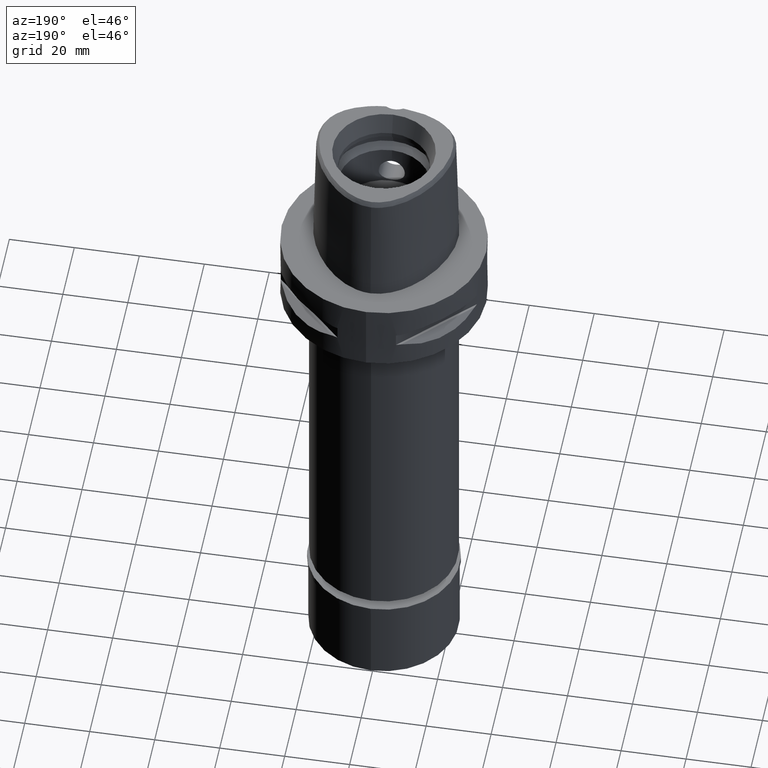
[diagram: clean part render]
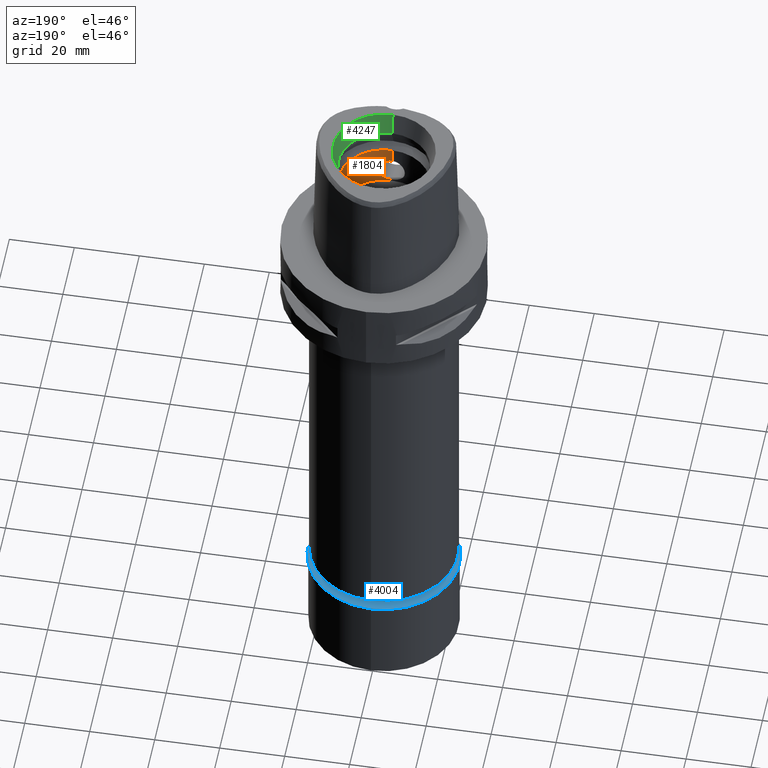
[diagram: same view with three faces highlighted in distinct colors, each labeled with its STEP entity id]
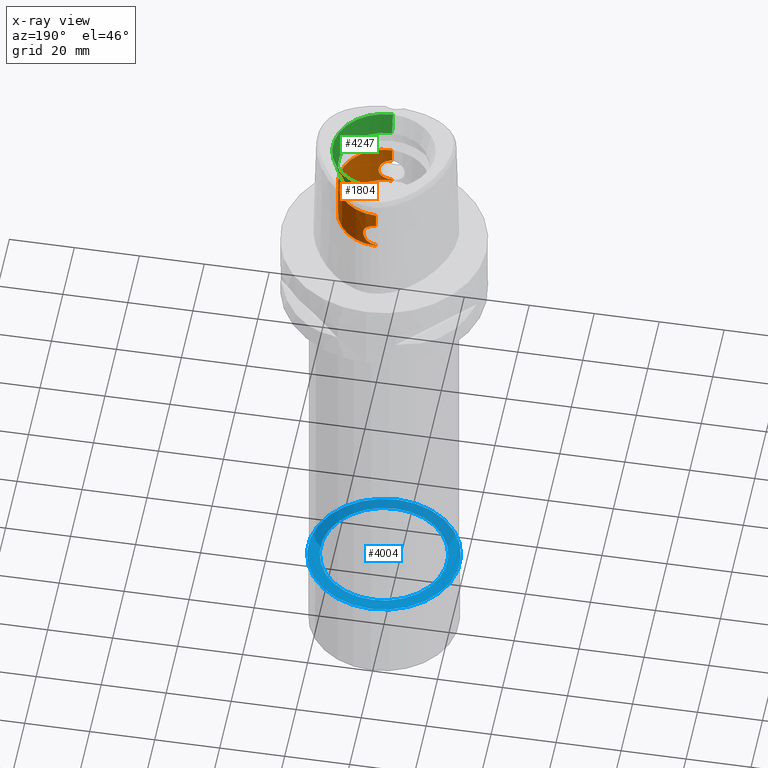
[diagram: x-ray of the same camera — body ghosted, the three highlighted faces saturated]
A machine part, auxiliary view with three faces highlighted in distinct colors.
The next image is the same camera in x-ray (body ghosted, the three faces saturated) — at least one of them is partly hidden behind the body in this view.
Their STEP definitions:

[orange] entity #1804 — the highlighted cylindrical surface (partial cylindrical patch) has radius 14 mm, axis along (0, 0, -1).
#11 = CARTESIAN_POINT ( 'NONE',  ( 2.356169659980356990, 13.80026630004203447, 18.79420345841271711 ) ) ;
#18 = CARTESIAN_POINT ( 'NONE',  ( 1.017639181859059772, -13.96323047955135976, 19.42236212085266089 ) ) ;
#33 = CARTESIAN_POINT ( 'NONE',  ( 0.5031375785651610588, 13.99299620741434325, 11.47286437004442305 ) ) ;
#36 = CARTESIAN_POINT ( 'NONE',  ( 2.474897425330298883, 13.77946391610721300, 18.70653994269108011 ) ) ;
#40 = CARTESIAN_POINT ( 'NONE',  ( 1.516899316928164376, -13.91750090884430335, 19.25522928305961656 ) ) ;
#53 = CARTESIAN_POINT ( 'NONE',  ( 2.993275682879698252, 13.67636296169212606, 18.22847972466929889 ) ) ;
#65 = CYLINDRICAL_SURFACE ( 'NONE', #2184, 14.00000000000000000 ) ;
#76 = CARTESIAN_POINT ( 'NONE',  ( 1.773859858298503012, 13.88717310935475524, 19.14143527715514992 ) ) ;
#83 = CARTESIAN_POINT ( 'NONE',  ( 3.557104272944181300, -13.54067981902579199, 13.56250217908869082 ) ) ;
#88 = EDGE_CURVE ( 'NONE', #3905, #2511, #2201, .T. ) ;
#111 = CARTESIAN_POINT ( 'NONE',  ( 3.723011875673563065, -13.49602288719190923, 17.09439534800783633 ) ) ;
#116 = CARTESIAN_POINT ( 'NONE',  ( 0.0000000000000000000, 14.00000000000000000, 19.55000000000000071 ) ) ;
#132 = CARTESIAN_POINT ( 'NONE',  ( 3.927475894207633988, -13.43840014692450779, 16.52342187619371217 ) ) ;
#158 = CARTESIAN_POINT ( 'NONE',  ( 2.619693227490592857, -13.75270887468306924, 18.58958572216364402 ) ) ;
#169 = AXIS2_PLACEMENT_3D ( 'NONE', #3691, #4095, #257 ) ;
#179 = B_SPLINE_CURVE_WITH_KNOTS ( 'NONE', 3,
 ( #1914, #1184, #3425, #774, #18, #2322, #404, #3484, #1484, #3459, #40, #1589, #1567, #3103, #3010, #4645, #1213, #4550, #1110, #857, #516, #2864, #3609, #1287, #3153, #158, #2449, #4318, #4696, #442, #1236, #3206, #881, #2842, #1332, #2823, #496, #2472, #3889, #3959, #4369, #1312, #927, #2768, #2065, #4346, #3579, #1713, #111, #3225, #2431, #3985, #1262, #132, #4293, #4767, #3174, #3937, #4717, #187, #2793, #2044, #4391, #3555, #2376, #1991, #1663, #3503, #1641, #83, #907, #535, #1687, #4744, #2399, #1617, #2092, #3130, #4670, #3908, #467, #2018, #3533, #2910, #1829, #4885, #4442, #3649, #2136, #4857, #981, #2950, #1401, #4418, #4817, #2518, #4014, #273, #1352, #1453, #4489, #2927, #1003, #1758, #664, #604, #4035, #1056, #2982 ),
 .UNSPECIFIED., .F., .F.,
 ( 4, 2, 2, 1, 1, 2, 2, 2, 2, 1, 1, 1, 2, 2, 2, 2, 1, 2, 2, 2, 2, 1, 1, 1, 2, 2, 2, 2, 1, 1, 2, 2, 2, 2, 2, 2, 1, 1, 1, 2, 2, 2, 2, 1, 1, 1, 2, 2, 2, 2, 2, 2, 2, 2, 1, 1, 1, 2, 2, 2, 2, 1, 2, 2, 4 ),
 ( 0.0000000000000000000, 0.06249999999999861222, 0.09374999999999793221, 0.1093749999999977102, 0.1171874999999976824, 0.1210937499999975714, 0.1249999999999974742, 0.1562499999999949762, 0.1718749999999935885, 0.1796874999999928668, 0.1835937499999927003, 0.1855468749999926170, 0.1865234374999926170, 0.1874999999999926170, 0.2187499999999881206, 0.2343749999999858724, 0.2421874999999847344, 0.2460937499999841238, 0.2499999999999835132, 0.2812499999999796274, 0.2968749999999779066, 0.3046874999999771294, 0.3085937499999763522, 0.3105468749999760192, 0.3115234374999757971, 0.3124999999999756306, 0.3437499999999881761, 0.3593749999999947264, 0.3671874999999984457, 0.3710937499999999445, 0.3730468750000002776, 0.3750000000000006106, 0.4375000000000112688, 0.5000000000000219824, 0.5625000000000326406, 0.5937500000000379696, 0.6093750000000408562, 0.6171875000000422995, 0.6210937500000431877, 0.6230468750000437428, 0.6250000000000444089, 0.6562500000000488498, 0.6718750000000509592, 0.6796875000000517364, 0.6835937500000521805, 0.6855468750000522915, 0.6865234375000524025, 0.6875000000000524025, 0.7187500000000455191, 0.7343750000000420775, 0.7421875000000405231, 0.7500000000000388578, 0.7812500000000324185, 0.7968750000000293099, 0.8046875000000278666, 0.8085937500000270894, 0.8105468750000267564, 0.8115234375000267564, 0.8125000000000266454, 0.8437500000000217604, 0.8593750000000194289, 0.8671875000000182077, 0.8710937500000175415, 0.8750000000000168754, 1.000000000000000000 ),
 .UNSPECIFIED. ) ;
#187 = CARTESIAN_POINT ( 'NONE',  ( 3.922079205936650936, -13.43983130147391414, 14.48117699419107574 ) ) ;
#221 = CARTESIAN_POINT ( 'NONE',  ( 0.0000000000000000000, -14.00000000000000000, 24.19999999999999929 ) ) ;
#234 = CARTESIAN_POINT ( 'NONE',  ( 0.0000000000000000000, -14.00000000000000000, 11.00000000000000000 ) ) ;
#251 = CARTESIAN_POINT ( 'NONE',  ( 2.564495781835727684, 13.76306347781942740, 12.36466282433596042 ) ) ;
#257 = DIRECTION ( 'NONE',  ( 0.0000000000000000000, 1.000000000000000000, 0.0000000000000000000 ) ) ;
#273 = CARTESIAN_POINT ( 'NONE',  ( 2.130881178302892920, -13.83743566614956499, 12.05283858992811119 ) ) ;
#276 = CARTESIAN_POINT ( 'NONE',  ( 2.206585077432667852, 13.82500562469161487, 12.10388135703218460 ) ) ;
#295 = CARTESIAN_POINT ( 'NONE',  ( 2.794188265665984883, 13.71831884113747613, 12.56820068599706985 ) ) ;
#298 = EDGE_CURVE ( 'NONE', #3455, #4815, #3277, .T. ) ;
#322 = VECTOR ( 'NONE', #1962, 1000.000000000000000 ) ;
#323 = CARTESIAN_POINT ( 'NONE',  ( 2.987551070598235103, 13.67820116345343351, 12.75916637442935020 ) ) ;
#348 = CARTESIAN_POINT ( 'NONE',  ( 3.362135645915919735, 13.59026426608101623, 13.24199978628648466 ) ) ;
#364 = VERTEX_POINT ( 'NONE', #1861 ) ;
#396 = CARTESIAN_POINT ( 'NONE',  ( 3.557088666341913452, 13.54068383479801696, 17.43752651043655888 ) ) ;
#404 = CARTESIAN_POINT ( 'NONE',  ( 1.307177758792425593, -13.93893633211208183, 19.33430355924310362 ) ) ;
#420 = CARTESIAN_POINT ( 'NONE',  ( 0.0000000000000000000, -14.00000000000000000, 19.55000000000000071 ) ) ;
#422 = EDGE_CURVE ( 'NONE', #4613, #3455, #4136, .T. ) ;
#442 = CARTESIAN_POINT ( 'NONE',  ( 2.824278146743549822, -13.71216806335033134, 18.40282419413597381 ) ) ;
#459 = CARTESIAN_POINT ( 'NONE',  ( 3.377713256182831802, 13.58640893255668480, 17.73462749921339565 ) ) ;
#467 = CARTESIAN_POINT ( 'NONE',  ( 3.144649004261528269, -13.64249969685045905, 12.94694166654273459 ) ) ;
#496 = CARTESIAN_POINT ( 'NONE',  ( 3.321853759897874347, -13.60021613421030828, 17.81705094767798414 ) ) ;
#508 = ORIENTED_EDGE ( 'NONE', *, *, #88, .T. ) ;
#516 = CARTESIAN_POINT ( 'NONE',  ( 2.225307842475649611, -13.82200032481022589, 18.88386244170435901 ) ) ;
#535 = CARTESIAN_POINT ( 'NONE',  ( 3.471407568617137063, -13.56281871368539349, 13.41360808473570287 ) ) ;
#543 = CARTESIAN_POINT ( 'NONE',  ( 0.0000000000000000000, 14.00000000000000000, 11.00000000000000000 ) ) ;
#555 = CARTESIAN_POINT ( 'NONE',  ( 0.0000000000000000000, 14.00000000000000000, 11.44999999999999929 ) ) ;
#604 = CARTESIAN_POINT ( 'NONE',  ( 1.559056483628390000, -13.91280418779705386, 11.76206681924366038 ) ) ;
#607 = CARTESIAN_POINT ( 'NONE',  ( 1.467188112033413816, 13.92282148873381864, 11.72506250693289864 ) ) ;
#642 = CARTESIAN_POINT ( 'NONE',  ( 4.049894426081060317, 13.40142315477328694, 15.74850829864217161 ) ) ;
#664 = CARTESIAN_POINT ( 'NONE',  ( 1.571471244893269947, -13.91140584751726195, 11.76727716384253242 ) ) ;
#665 = CARTESIAN_POINT ( 'NONE',  ( 3.446439376995800608, 13.56939223702177699, 13.36783492912207905 ) ) ;
#688 = CARTESIAN_POINT ( 'NONE',  ( 3.850558670354384372, 13.46064117905768498, 14.21385490519483774 ) ) ;
#720 = CARTESIAN_POINT ( 'NONE',  ( 2.837973772893474411, 13.70934612522084173, 12.61054438063453098 ) ) ;
#769 = CARTESIAN_POINT ( 'NONE',  ( 2.130873031675732943, 13.83743700475326222, 18.94716637659228908 ) ) ;
#774 = CARTESIAN_POINT ( 'NONE',  ( 0.8886530555208230764, -13.97198512727722708, 19.45346844016501819 ) ) ;
#826 = CARTESIAN_POINT ( 'NONE',  ( 0.0000000000000000000, 14.00000000000000000, 19.55000000000000071 ) ) ;
#857 = CARTESIAN_POINT ( 'NONE',  ( 2.217825895411760673, -13.82320329824160154, 18.88877091521425200 ) ) ;
#871 = DIRECTION ( 'NONE',  ( 0.0000000000000000000, 0.0000000000000000000, 1.000000000000000000 ) ) ;
#881 = CARTESIAN_POINT ( 'NONE',  ( 3.092415008813759414, -13.65466569419126941, 18.11866219984722548 ) ) ;
#907 = CARTESIAN_POINT ( 'NONE',  ( 3.524216152967915239, -13.54926445640317390, 13.50320070280202778 ) ) ;
#927 = CARTESIAN_POINT ( 'NONE',  ( 3.446478207123973903, -13.56938250736676821, 17.63210248793066270 ) ) ;
#981 = CARTESIAN_POINT ( 'NONE',  ( 2.356179768667444829, -13.80026442332007797, 12.20580376819834711 ) ) ;
#1003 = CARTESIAN_POINT ( 'NONE',  ( 1.643124464716988919, -13.90317117703250283, 11.79805916106663588 ) ) ;
#1006 = CARTESIAN_POINT ( 'NONE',  ( 4.027216825694031499, 13.40877103518722357, 14.99603235332364903 ) ) ;
#1028 = CARTESIAN_POINT ( 'NONE',  ( 3.649287754606132417, 13.51628378879347814, 17.26146357314931024 ) ) ;
#1056 = CARTESIAN_POINT ( 'NONE',  ( 0.4996170307102337782, -13.99999999999999822, 11.44999999999999396 ) ) ;
#1058 = CARTESIAN_POINT ( 'NONE',  ( 1.210739730854810459, 13.94747155560755481, 11.63462642380360457 ) ) ;
#1083 = CARTESIAN_POINT ( 'NONE',  ( 2.180412222332861027, 13.82916808513869356, 12.08695799697060025 ) ) ;
#1105 = CARTESIAN_POINT ( 'NONE',  ( 3.217025596349118555, 13.62560769370299951, 13.03875506105696758 ) ) ;
#1110 = CARTESIAN_POINT ( 'NONE',  ( 2.206604282627393498, -13.82500263684194053, 18.89610616579946623 ) ) ;
#1134 = CARTESIAN_POINT ( 'NONE',  ( 2.010501717821064460, 13.85534156541368667, 19.01828921528356986 ) ) ;
#1184 = CARTESIAN_POINT ( 'NONE',  ( 0.2481241771891335435, -14.00000000000000178, 19.54999999999999361 ) ) ;
#1204 = CARTESIAN_POINT ( 'NONE',  ( 1.832682128947450639, 13.87954668815114267, 19.11223895308327414 ) ) ;
#1213 = CARTESIAN_POINT ( 'NONE',  ( 2.128132661610546261, -13.83734705125468700, 18.94611731526516252 ) ) ;
#1218 = FACE_OUTER_BOUND ( 'NONE', #4638, .T. ) ;
#1236 = CARTESIAN_POINT ( 'NONE',  ( 2.838009928935847803, -13.70933862722912977, 18.38942009771112751 ) ) ;
#1262 = CARTESIAN_POINT ( 'NONE',  ( 3.850575600135678567, -13.46063562734242325, 16.78609245255339033 ) ) ;
#1285 = ORIENTED_EDGE ( 'NONE', *, *, #4603, .F. ) ;
#1287 = CARTESIAN_POINT ( 'NONE',  ( 2.407040127210700042, -13.79178862306534903, 18.75984205949160000 ) ) ;
#1312 = CARTESIAN_POINT ( 'NONE',  ( 3.362175151429302122, -13.59025468045926210, 17.75794138952812062 ) ) ;
#1332 = CARTESIAN_POINT ( 'NONE',  ( 3.253150413719887446, -13.61695205282538801, 17.91296083942541983 ) ) ;
#1351 = ORIENTED_EDGE ( 'NONE', *, *, #1874, .F. ) ;
#1352 = CARTESIAN_POINT ( 'NONE',  ( 2.010509632018043558, -13.85534039799606809, 11.98171533891770579 ) ) ;
#1369 = VECTOR ( 'NONE', #2598, 1000.000000000000000 ) ;
#1401 = CARTESIAN_POINT ( 'NONE',  ( 2.286401869824826072, -13.81203602588828794, 12.15707754367046434 ) ) ;
#1403 = CARTESIAN_POINT ( 'NONE',  ( 3.344202712280511136, 13.59470072215733438, 13.21548413948281997 ) ) ;
#1424 = CARTESIAN_POINT ( 'NONE',  ( 1.994196793350470953, 13.85732250606946003, 11.97431708272922002 ) ) ;
#1453 = CARTESIAN_POINT ( 'NONE',  ( 1.832691376557126661, -13.87954557479148576, 11.88776574645217110 ) ) ;
#1454 = CARTESIAN_POINT ( 'NONE',  ( 1.499100513058812201, 13.91942902670013638, 11.73762153891946447 ) ) ;
#1479 = CARTESIAN_POINT ( 'NONE',  ( 3.922078288965881399, 13.43983163058567598, 16.51882742556871264 ) ) ;
#1484 = CARTESIAN_POINT ( 'NONE',  ( 1.467178111796096918, -13.92282230864165804, 19.27494137943903496 ) ) ;
#1503 = CARTESIAN_POINT ( 'NONE',  ( 3.737862436382984210, 13.49191471466118131, 13.94085186772397122 ) ) ;
#1510 = CARTESIAN_POINT ( 'NONE',  ( 0.0000000000000000000, 0.0000000000000000000, 24.19999999999999929 ) ) ;
#1537 = CARTESIAN_POINT ( 'NONE',  ( 1.600065394692234744, 13.90814645047113807, 19.22055538723221702 ) ) ;
#1563 = CARTESIAN_POINT ( 'NONE',  ( 2.632421440604336027, 13.75053619292203422, 18.58073368517403168 ) ) ;
#1567 = CARTESIAN_POINT ( 'NONE',  ( 1.758914213702833296, -13.88947879501358784, 19.15051695542401333 ) ) ;
#1584 = CARTESIAN_POINT ( 'NONE',  ( 2.268763823005850444, 13.81494635581264063, 18.85488801691585081 ) ) ;
#1589 = CARTESIAN_POINT ( 'NONE',  ( 1.643402327093814730, -13.90359116573070608, 19.20357680873692630 ) ) ;
#1617 = CARTESIAN_POINT ( 'NONE',  ( 3.386236333444496260, -13.58428775399521271, 13.27830608081073649 ) ) ;
#1635 = CARTESIAN_POINT ( 'NONE',  ( 3.329833399432507335, 13.59830740143285155, 17.80689756936500245 ) ) ;
#1641 = CARTESIAN_POINT ( 'NONE',  ( 3.649300473944157464, -13.51628050932590952, 13.73856294196858840 ) ) ;
#1663 = CARTESIAN_POINT ( 'NONE',  ( 3.750535583143677520, -13.48837563528976702, 13.97158931176797303 ) ) ;
#1687 = CARTESIAN_POINT ( 'NONE',  ( 3.444134305114952443, -13.56976516763054086, 13.36865222199371495 ) ) ;
#1713 = CARTESIAN_POINT ( 'NONE',  ( 3.701476196223031589, -13.50195603622036877, 17.14416223935631223 ) ) ;
#1726 = B_SPLINE_CURVE_WITH_KNOTS ( 'NONE', 3,
 ( #3450, #1937, #33, #2313, #3828, #1058, #4495, #4860, #607, #1454, #2983, #4520, #2634, #4113, #1424, #3708, #4164, #1083, #276, #2236, #2194, #3298, #2610, #1809, #251, #4840, #2952, #1887, #295, #1785, #720, #323, #2589, #1105, #4935, #2559, #4089, #1403, #2265, #3782, #3320, #348, #665, #2213, #3728, #3395, #4139, #1833, #3753, #3345, #1503, #4888, #688, #3029, #1006, #1863, #642, #3374, #4912, #1479, #3005, #4546, #2930, #2538, #4060, #2162, #4466, #3685, #1028, #396, #2690, #2761, #2371, #2390, #3902, #3418, #3478, #459, #1635, #3060, #4287, #4217, #3453, #53, #1942, #3882, #4639, #1563, #36, #2663, #11, #2009, #2348, #1584, #4193, #3125, #4242, #769, #1134, #1204, #76, #3499, #4664, #1537, #2740, #3098, #4271, #3079, #826 ),
 .UNSPECIFIED., .F., .F.,
 ( 4, 2, 2, 1, 1, 2, 2, 2, 2, 1, 1, 1, 2, 2, 2, 2, 1, 2, 2, 2, 2, 1, 1, 1, 2, 2, 2, 2, 1, 1, 2, 2, 2, 2, 2, 2, 1, 1, 1, 2, 2, 2, 2, 1, 1, 1, 2, 2, 2, 2, 2, 2, 2, 2, 1, 1, 1, 2, 2, 2, 2, 1, 2, 2, 4 ),
 ( 0.0000000000000000000, 0.06250000000002138567, 0.09375000000003208545, 0.1093750000000373868, 0.1171875000000400235, 0.1210937500000413142, 0.1250000000000425771, 0.1562500000000529021, 0.1718750000000581479, 0.1796875000000608402, 0.1835937500000622002, 0.1855468750000628664, 0.1865234375000631162, 0.1875000000000633660, 0.2187500000000720257, 0.2343750000000762446, 0.2421875000000783817, 0.2460937500000794087, 0.2500000000000804357, 0.2812500000000883738, 0.2968750000000922040, 0.3046875000000943134, 0.3085937500000953126, 0.3105468750000957567, 0.3115234375000957012, 0.3125000000000956457, 0.3437500000000897615, 0.3593750000000867639, 0.3671875000000850986, 0.3710937500000843214, 0.3730468750000841549, 0.3750000000000839884, 0.4375000000000763833, 0.5000000000000687228, 0.5625000000000610623, 0.5937500000000568434, 0.6093750000000547340, 0.6171875000000537348, 0.6210937500000535127, 0.6230468750000534017, 0.6250000000000532907, 0.6562500000000528466, 0.6718750000000526246, 0.6796875000000521805, 0.6835937500000519584, 0.6855468750000521805, 0.6865234375000519584, 0.6875000000000517364, 0.7187500000000504041, 0.7343750000000500711, 0.7421875000000499600, 0.7500000000000498490, 0.7812500000000496270, 0.7968750000000497380, 0.8046875000000501821, 0.8085937500000504041, 0.8105468750000504041, 0.8115234375000504041, 0.8125000000000504041, 0.8437500000000428546, 0.8593750000000391909, 0.8671875000000375255, 0.8710937500000365263, 0.8750000000000355271, 1.000000000000000000 ),
 .UNSPECIFIED. ) ;
#1758 = CARTESIAN_POINT ( 'NONE',  ( 1.600078814829182683, -13.90814512833554062, 11.77945038583911952 ) ) ;
#1785 = CARTESIAN_POINT ( 'NONE',  ( 2.824245245329735532, 13.71217485459649943, 12.59714380724674676 ) ) ;
#1804 = ADVANCED_FACE ( 'NONE', ( #1218 ), #65, .F. ) ;
#1809 = CARTESIAN_POINT ( 'NONE',  ( 2.407026743236367672, 13.79179092510370097, 12.24014823374410454 ) ) ;
#1829 = CARTESIAN_POINT ( 'NONE',  ( 2.935464796402679433, -13.68884427349752286, 12.70941809089992525 ) ) ;
#1833 = CARTESIAN_POINT ( 'NONE',  ( 3.701448599127524108, 13.50196410077353448, 13.85577559946501047 ) ) ;
#1861 = CARTESIAN_POINT ( 'NONE',  ( 0.0000000000000000000, 14.00000000000000000, 19.55000000000000071 ) ) ;
#1863 = CARTESIAN_POINT ( 'NONE',  ( 4.050104837865987406, 13.40137507185002264, 15.25494482419060205 ) ) ;
#1874 = EDGE_CURVE ( 'NONE', #364, #4815, #3177, .T. ) ;
#1887 = CARTESIAN_POINT ( 'NONE',  ( 2.749405349986303371, 13.72738952680676761, 12.52574890524282303 ) ) ;
#1897 = ORIENTED_EDGE ( 'NONE', *, *, #3763, .F. ) ;
#1907 = CARTESIAN_POINT ( 'NONE',  ( 0.0000000000000000000, 14.00000000000000000, 24.19999999999999929 ) ) ;
#1914 = CARTESIAN_POINT ( 'NONE',  ( 0.0000000000000000000, -14.00000000000000000, 19.55000000000000071 ) ) ;
#1937 = CARTESIAN_POINT ( 'NONE',  ( 0.2481266265099588697, 14.00000000000000000, 11.44999999999999929 ) ) ;
#1942 = CARTESIAN_POINT ( 'NONE',  ( 2.935444872375262637, 13.68884853175270422, 18.29060286011752723 ) ) ;
#1962 = DIRECTION ( 'NONE',  ( 0.0000000000000000000, 0.0000000000000000000, 1.000000000000000000 ) ) ;
#1991 = CARTESIAN_POINT ( 'NONE',  ( 3.754236443714588756, -13.48734669256755936, 13.98069631228531051 ) ) ;
#2005 = LINE ( 'NONE', #2108, #4076 ) ;
#2009 = CARTESIAN_POINT ( 'NONE',  ( 2.322867095772036539, 13.80594945643857230, 18.81782271191790201 ) ) ;
#2018 = CARTESIAN_POINT ( 'NONE',  ( 3.098515381889971554, -13.65306636117190564, 12.89080379855279013 ) ) ;
#2044 = CARTESIAN_POINT ( 'NONE',  ( 3.833378784122815297, -13.46518651548714907, 14.19006897788388244 ) ) ;
#2065 = CARTESIAN_POINT ( 'NONE',  ( 3.612125191156387860, -13.52615234759962703, 17.33290907844232720 ) ) ;
#2092 = CARTESIAN_POINT ( 'NONE',  ( 3.381275431631792117, -13.58552310375042360, 13.27076317275498774 ) ) ;
#2108 = CARTESIAN_POINT ( 'NONE',  ( 0.0000000000000000000, 14.00000000000000000, 11.00000000000000000 ) ) ;
#2136 = CARTESIAN_POINT ( 'NONE',  ( 2.474909159159460970, -13.77946166279256879, 12.29346908445200093 ) ) ;
#2162 = CARTESIAN_POINT ( 'NONE',  ( 3.754225769600867846, 13.48734939608367966, 17.01933006533278814 ) ) ;
#2166 = ORIENTED_EDGE ( 'NONE', *, *, #298, .T. ) ;
#2184 = AXIS2_PLACEMENT_3D ( 'NONE', #3964, #3111, #4326 ) ;
#2194 = CARTESIAN_POINT ( 'NONE',  ( 2.225288147325894528, 13.82200341650443498, 12.11612460655873313 ) ) ;
#2201 = LINE ( 'NONE', #234, #1369 ) ;
#2213 = CARTESIAN_POINT ( 'NONE',  ( 3.518019159262221862, 13.55099469856486749, 13.48901570195362432 ) ) ;
#2236 = CARTESIAN_POINT ( 'NONE',  ( 2.217806395109848783, 13.82320634840191609, 12.11121632281193605 ) ) ;
#2265 = CARTESIAN_POINT ( 'NONE',  ( 3.354680329558042740, 13.59210945296616124, 13.23093247310055709 ) ) ;
#2299 = DIRECTION ( 'NONE',  ( 0.0000000000000000000, -1.000000000000000000, 0.0000000000000000000 ) ) ;
#2313 = CARTESIAN_POINT ( 'NONE',  ( 0.8886602406458201653, 13.97198482965736588, 11.54653314444766821 ) ) ;
#2322 = CARTESIAN_POINT ( 'NONE',  ( 1.210730804381433323, -13.94747211364479789, 19.36537636553163111 ) ) ;
#2348 = CARTESIAN_POINT ( 'NONE',  ( 2.286392394009954199, 13.81203773452794792, 18.84292893667480584 ) ) ;
#2371 = CARTESIAN_POINT ( 'NONE',  ( 3.444114222038757500, 13.56977022798827548, 17.63138026178977569 ) ) ;
#2376 = CARTESIAN_POINT ( 'NONE',  ( 3.760698389518176032, -13.48554827042932125, 13.99676262889268941 ) ) ;
#2390 = CARTESIAN_POINT ( 'NONE',  ( 3.410721871959659257, 13.57817107781601074, 17.68404181484999071 ) ) ;
#2399 = CARTESIAN_POINT ( 'NONE',  ( 3.393648836085029430, -13.58244002077815793, 13.28961777950711109 ) ) ;
#2431 = CARTESIAN_POINT ( 'NONE',  ( 3.737887346442035241, -13.49190726130660067, 17.05908841074237614 ) ) ;
#2449 = CARTESIAN_POINT ( 'NONE',  ( 2.705656092680882807, -13.73601936352119424, 18.51386516674654814 ) ) ;
#2472 = CARTESIAN_POINT ( 'NONE',  ( 3.344238891813140047, -13.59469201712436082, 17.78446291343045615 ) ) ;
#2511 = VERTEX_POINT ( 'NONE', #2980 ) ;
#2518 = CARTESIAN_POINT ( 'NONE',  ( 2.256430671651378006, -13.81696743697028218, 12.13681261213931961 ) ) ;
#2536 = EDGE_CURVE ( 'NONE', #3724, #364, #1726, .T. ) ;
#2538 = CARTESIAN_POINT ( 'NONE',  ( 3.770295828577627351, 13.48287449147565376, 16.97915267913733572 ) ) ;
#2559 = CARTESIAN_POINT ( 'NONE',  ( 3.300115213668325165, 13.60554254247755246, 13.15213791935524590 ) ) ;
#2589 = CARTESIAN_POINT ( 'NONE',  ( 3.092390698714773567, 13.65467114209335264, 12.88130927472243847 ) ) ;
#2598 = DIRECTION ( 'NONE',  ( 0.0000000000000000000, 0.0000000000000000000, 1.000000000000000000 ) ) ;
#2610 = CARTESIAN_POINT ( 'NONE',  ( 2.312892876173468171, 13.80784294826023206, 12.17400404921139589 ) ) ;
#2634 = CARTESIAN_POINT ( 'NONE',  ( 1.758911448488973184, 13.88947925419896201, 11.84948192320104532 ) ) ;
#2663 = CARTESIAN_POINT ( 'NONE',  ( 2.425345327374605287, 13.78828047748906549, 18.74398637652861765 ) ) ;
#2690 = CARTESIAN_POINT ( 'NONE',  ( 3.524199374407259722, 13.54926875963957933, 17.49682897130887227 ) ) ;
#2740 = CARTESIAN_POINT ( 'NONE',  ( 1.571457089741343793, 13.91140721977019368, 19.23272879698699001 ) ) ;
#2761 = CARTESIAN_POINT ( 'NONE',  ( 3.471388650637377449, 13.56282351116202278, 17.58642340598301246 ) ) ;
#2768 = CARTESIAN_POINT ( 'NONE',  ( 3.518056051401501350, -13.55098508630044307, 17.51091968136194410 ) ) ;
#2793 = CARTESIAN_POINT ( 'NONE',  ( 3.864698997097002930, -13.45627842727296652, 14.28708901169996359 ) ) ;
#2823 = CARTESIAN_POINT ( 'NONE',  ( 3.300146341795883842, -13.60553517927602307, 17.84781835529345884 ) ) ;
#2842 = CARTESIAN_POINT ( 'NONE',  ( 3.217051634068528454, -13.62560167974890746, 17.96121095391035993 ) ) ;
#2864 = CARTESIAN_POINT ( 'NONE',  ( 2.230287417957035334, -13.82119696819931676, 18.88058087294007592 ) ) ;
#2887 = CARTESIAN_POINT ( 'NONE',  ( 0.0000000000000000000, -14.00000000000000000, 19.55000000000000071 ) ) ;
#2910 = CARTESIAN_POINT ( 'NONE',  ( 2.993295809011346176, -13.67635858830018236, 12.77154234739273875 ) ) ;
#2926 = ORIENTED_EDGE ( 'NONE', *, *, #4383, .T. ) ;
#2927 = CARTESIAN_POINT ( 'NONE',  ( 1.686553841107073293, -13.89794860813812605, 11.81773595101646102 ) ) ;
#2930 = CARTESIAN_POINT ( 'NONE',  ( 3.792115437646679243, 13.47677934324684657, 16.92282825343409058 ) ) ;
#2950 = CARTESIAN_POINT ( 'NONE',  ( 2.322876849062568638, -13.80594766825808151, 12.18218411295761605 ) ) ;
#2952 = CARTESIAN_POINT ( 'NONE',  ( 2.705631081828257845, 13.73602433004955259, 12.48611241062261534 ) ) ;
#2980 = CARTESIAN_POINT ( 'NONE',  ( 0.0000000000000000000, -14.00000000000000000, 11.44999999999999929 ) ) ;
#2982 = CARTESIAN_POINT ( 'NONE',  ( 0.0000000000000000000, -14.00000000000000000, 11.44999999999999929 ) ) ;
#2983 = CARTESIAN_POINT ( 'NONE',  ( 1.516910412645901429, 13.91749993127318064, 11.74477520274085229 ) ) ;
#3005 = CARTESIAN_POINT ( 'NONE',  ( 3.864694685434272969, 13.45627952657940796, 16.71292491331624319 ) ) ;
#3010 = CARTESIAN_POINT ( 'NONE',  ( 1.994209348769595991, -13.85732070569303609, 19.02567586474664552 ) ) ;
#3029 = CARTESIAN_POINT ( 'NONE',  ( 3.927462924626538232, 13.43840419036665779, 14.47652859066138653 ) ) ;
#3060 = CARTESIAN_POINT ( 'NONE',  ( 3.267839164474154234, 13.61368337661979133, 17.89612675440678657 ) ) ;
#3079 = CARTESIAN_POINT ( 'NONE',  ( 0.4996109250117751199, 13.99999999999999822, 19.54999999999999005 ) ) ;
#3098 = CARTESIAN_POINT ( 'NONE',  ( 1.559041427489886278, 13.91280564626705818, 19.23793945981500997 ) ) ;
#3103 = CARTESIAN_POINT ( 'NONE',  ( 1.935032715238542034, -13.86568800701370385, 19.05844582707220525 ) ) ;
#3111 = DIRECTION ( 'NONE',  ( 0.0000000000000000000, 0.0000000000000000000, -1.000000000000000000 ) ) ;
#3119 = CIRCLE ( 'NONE', #169, 14.00000000000000000 ) ;
#3125 = CARTESIAN_POINT ( 'NONE',  ( 2.256421358878216488, 13.81696909001792939, 18.86319363595353593 ) ) ;
#3130 = CARTESIAN_POINT ( 'NONE',  ( 3.377736576019396697, -13.58640317541314779, 13.26540774978083981 ) ) ;
#3153 = CARTESIAN_POINT ( 'NONE',  ( 2.564513564730313888, -13.76306012764107400, 18.63532267606102266 ) ) ;
#3174 = CARTESIAN_POINT ( 'NONE',  ( 4.049890164046265006, -13.40142381086345580, 15.25144457811942189 ) ) ;
#3177 = LINE ( 'NONE', #116, #3209 ) ;
#3206 = CARTESIAN_POINT ( 'NONE',  ( 2.987578035361540429, -13.67819521538192262, 18.24080360141576307 ) ) ;
#3209 = VECTOR ( 'NONE', #4300, 1000.000000000000000 ) ;
#3225 = CARTESIAN_POINT ( 'NONE',  ( 3.731972597727747143, -13.49354487605791597, 17.07319389046991986 ) ) ;
#3277 = CIRCLE ( 'NONE', #3925, 14.00000000000000000 ) ;
#3298 = CARTESIAN_POINT ( 'NONE',  ( 2.230267356648572896, 13.82120012601264136, 12.11940589182371220 ) ) ;
#3320 = CARTESIAN_POINT ( 'NONE',  ( 3.361880068163155766, 13.59032751575134057, 13.24162249144547943 ) ) ;
#3345 = CARTESIAN_POINT ( 'NONE',  ( 3.731947233726997659, 13.49355243646696678, 13.92674594029439028 ) ) ;
#3374 = CARTESIAN_POINT ( 'NONE',  ( 4.027172463322592044, 13.40874935841158333, 16.00310739076642363 ) ) ;
#3395 = CARTESIAN_POINT ( 'NONE',  ( 3.641236061999908014, 13.51834413261587109, 13.72574250724094469 ) ) ;
#3418 = CARTESIAN_POINT ( 'NONE',  ( 3.386213530919897519, 13.58429339872629527, 17.72172867399999774 ) ) ;
#3425 = CARTESIAN_POINT ( 'NONE',  ( 0.5031329879853218001, -13.99299628181930721, 19.52713608390261868 ) ) ;
#3450 = CARTESIAN_POINT ( 'NONE',  ( 0.0000000000000000000, 14.00000000000000000, 11.44999999999999929 ) ) ;
#3453 = CARTESIAN_POINT ( 'NONE',  ( 3.020660456626143464, 13.67036005578519386, 18.19808468408423963 ) ) ;
#3455 = VERTEX_POINT ( 'NONE', #221 ) ;
#3459 = CARTESIAN_POINT ( 'NONE',  ( 1.499090398661282686, -13.91942988264788816, 19.26238249073326614 ) ) ;
#3478 = CARTESIAN_POINT ( 'NONE',  ( 3.381252386275208188, 13.58552879951880676, 17.72927178203262955 ) ) ;
#3484 = CARTESIAN_POINT ( 'NONE',  ( 1.419263858835631442, -13.92782887280988469, 19.29344666031667543 ) ) ;
#3499 = CARTESIAN_POINT ( 'NONE',  ( 1.686542341523468602, 13.89794981159688980, 19.18226932052732536 ) ) ;
#3503 = CARTESIAN_POINT ( 'NONE',  ( 3.702139074830980370, -13.50182043943570775, 13.85345734741602897 ) ) ;
#3533 = CARTESIAN_POINT ( 'NONE',  ( 3.020680690212906860, -13.67035562331099463, 12.80193796121388239 ) ) ;
#3555 = CARTESIAN_POINT ( 'NONE',  ( 3.770305607769191880, -13.48287202863804346, 14.02087226161110678 ) ) ;
#3579 = CARTESIAN_POINT ( 'NONE',  ( 3.681917144195075320, -13.50730066061474233, 17.18730806970415514 ) ) ;
#3609 = CARTESIAN_POINT ( 'NONE',  ( 2.312907190698829218, -13.80784060208189246, 18.82598581437272145 ) ) ;
#3649 = CARTESIAN_POINT ( 'NONE',  ( 2.632435958422842948, -13.75053331392669342, 12.41927859769366727 ) ) ;
#3685 = CARTESIAN_POINT ( 'NONE',  ( 3.702127444390315159, 13.50182339615068727, 17.14656876326777279 ) ) ;
#3691 = CARTESIAN_POINT ( 'NONE',  ( 0.0000000000000000000, 0.0000000000000000000, 11.00000000000000000 ) ) ;
#3708 = CARTESIAN_POINT ( 'NONE',  ( 2.083402352693820347, 13.84411649686240153, 12.02679904731587435 ) ) ;
#3724 = VERTEX_POINT ( 'NONE', #555 ) ;
#3728 = CARTESIAN_POINT ( 'NONE',  ( 3.612092317030220379, 13.52616139818937846, 13.66702611687112956 ) ) ;
#3753 = CARTESIAN_POINT ( 'NONE',  ( 3.722985834075813294, 13.49603060517026876, 13.90554383511542191 ) ) ;
#3763 = EDGE_CURVE ( 'NONE', #4215, #3724, #2005, .T. ) ;
#3782 = CARTESIAN_POINT ( 'NONE',  ( 3.359020109898814610, 13.59103542221254735, 13.23737089536243872 ) ) ;
#3813 = DIRECTION ( 'NONE',  ( 0.0000000000000000000, 0.0000000000000000000, 1.000000000000000000 ) ) ;
#3828 = CARTESIAN_POINT ( 'NONE',  ( 1.017647129622376134, 13.96323008892529138, 11.57763991488771715 ) ) ;
#3882 = CARTESIAN_POINT ( 'NONE',  ( 2.903809840836996337, 13.69558042595941671, 18.32352754237540182 ) ) ;
#3889 = CARTESIAN_POINT ( 'NONE',  ( 3.354718119041944391, -13.59210031745406866, 17.76901166034103596 ) ) ;
#3902 = CARTESIAN_POINT ( 'NONE',  ( 3.393626394335426788, 13.58244558944580405, 17.71041667753680571 ) ) ;
#3905 = VERTEX_POINT ( 'NONE', #4405 ) ;
#3908 = CARTESIAN_POINT ( 'NONE',  ( 3.267860856932915947, -13.61367823519996989, 13.10390269899570370 ) ) ;
#3925 = AXIS2_PLACEMENT_3D ( 'NONE', #1510, #3813, #2299 ) ;
#3937 = CARTESIAN_POINT ( 'NONE',  ( 4.027167981720410239, -13.40875010521645372, 14.99686531044071636 ) ) ;
#3959 = CARTESIAN_POINT ( 'NONE',  ( 3.359058616895423732, -13.59102609449665522, 17.76257193801142975 ) ) ;
#3964 = CARTESIAN_POINT ( 'NONE',  ( 0.0000000000000000000, 0.0000000000000000000, 39.89999999999999858 ) ) ;
#3985 = CARTESIAN_POINT ( 'NONE',  ( 3.740374405824525184, -13.49121797331917172, 17.05311813183962499 ) ) ;
#3996 = ORIENTED_EDGE ( 'NONE', *, *, #2536, .F. ) ;
#4014 = CARTESIAN_POINT ( 'NONE',  ( 2.255326728034276140, -13.81714821576301588, 12.13607046265537548 ) ) ;
#4035 = CARTESIAN_POINT ( 'NONE',  ( 1.029195579361238400, -13.97152789805617878, 11.54372935796871324 ) ) ;
#4060 = CARTESIAN_POINT ( 'NONE',  ( 3.760688074393179203, 13.48555087701916833, 17.00326317844757540 ) ) ;
#4076 = VECTOR ( 'NONE', #871, 1000.000000000000000 ) ;
#4089 = CARTESIAN_POINT ( 'NONE',  ( 3.321820541935854187, 13.60022405027051562, 13.18290148898179837 ) ) ;
#4095 = DIRECTION ( 'NONE',  ( 0.0000000000000000000, 0.0000000000000000000, -1.000000000000000000 ) ) ;
#4113 = CARTESIAN_POINT ( 'NONE',  ( 1.935022422099377248, 13.86568947271855201, 11.94154862979159937 ) ) ;
#4136 = LINE ( 'NONE', #420, #322 ) ;
#4139 = CARTESIAN_POINT ( 'NONE',  ( 3.681888265789251768, 13.50730898608306596, 13.81262890101244345 ) ) ;
#4164 = CARTESIAN_POINT ( 'NONE',  ( 2.128115661502098632, 13.83734960245050161, 12.05387220701158668 ) ) ;
#4193 = CARTESIAN_POINT ( 'NONE',  ( 2.261340657161257095, 13.81616386827182019, 18.85988797640481351 ) ) ;
#4215 = VERTEX_POINT ( 'NONE', #543 ) ;
#4217 = CARTESIAN_POINT ( 'NONE',  ( 3.098494805694566256, 13.65307097543445813, 18.10922060507405362 ) ) ;
#4242 = CARTESIAN_POINT ( 'NONE',  ( 2.255317399664305000, 13.81714987027313235, 18.86393579140712973 ) ) ;
#4271 = CARTESIAN_POINT ( 'NONE',  ( 1.029184106487188499, 13.97152837429127814, 19.45627297032396186 ) ) ;
#4287 = CARTESIAN_POINT ( 'NONE',  ( 3.144628172867338201, 13.64250443836072435, 18.05308396090352474 ) ) ;
#4293 = CARTESIAN_POINT ( 'NONE',  ( 4.027223470519556869, -13.40876944169263041, 16.00391502731147142 ) ) ;
#4300 = DIRECTION ( 'NONE',  ( 0.0000000000000000000, 0.0000000000000000000, 1.000000000000000000 ) ) ;
#4318 = CARTESIAN_POINT ( 'NONE',  ( 2.749433056084740645, -13.72738395000903822, 18.47422555711175818 ) ) ;
#4326 = DIRECTION ( 'NONE',  ( 0.0000000000000000000, -1.000000000000000000, 0.0000000000000000000 ) ) ;
#4346 = CARTESIAN_POINT ( 'NONE',  ( 3.641267411175020730, -13.51833533351580208, 17.27419309984572848 ) ) ;
#4369 = CARTESIAN_POINT ( 'NONE',  ( 3.361919059607980209, -13.59031805818564642, 17.75831946434972153 ) ) ;
#4383 = EDGE_CURVE ( 'NONE', #4215, #3905, #3119, .T. ) ;
#4391 = CARTESIAN_POINT ( 'NONE',  ( 3.792123985361692817, -13.47677720437096482, 14.07719458705614635 ) ) ;
#4405 = CARTESIAN_POINT ( 'NONE',  ( 0.0000000000000000000, -14.00000000000000000, 11.00000000000000000 ) ) ;
#4418 = CARTESIAN_POINT ( 'NONE',  ( 2.268773195290123112, -13.81494468100402173, 12.14511832103651123 ) ) ;
#4442 = CARTESIAN_POINT ( 'NONE',  ( 2.749429150041745373, -13.72794355115538245, 12.52109900927169051 ) ) ;
#4466 = CARTESIAN_POINT ( 'NONE',  ( 3.750524584725995147, 13.48837842770463169, 17.02843767657987328 ) ) ;
#4489 = CARTESIAN_POINT ( 'NONE',  ( 1.773869829117109109, -13.88717198022757593, 11.85856959823384216 ) ) ;
#4495 = CARTESIAN_POINT ( 'NONE',  ( 1.307187133397777368, 13.93893568339380096, 11.66569962606505406 ) ) ;
#4520 = CARTESIAN_POINT ( 'NONE',  ( 1.643405570493256196, 13.90359095056343719, 11.79642487328022149 ) ) ;
#4546 = CARTESIAN_POINT ( 'NONE',  ( 3.833372613769522541, 13.46518805228033244, 16.80994934954906128 ) ) ;
#4550 = CARTESIAN_POINT ( 'NONE',  ( 2.180430719068608525, -13.82916524274897974, 18.91303019139414587 ) ) ;
#4603 = EDGE_CURVE ( 'NONE', #4613, #2511, #179, .T. ) ;
#4613 = VERTEX_POINT ( 'NONE', #2887 ) ;
#4634 = ORIENTED_EDGE ( 'NONE', *, *, #422, .T. ) ;
#4638 = EDGE_LOOP ( 'NONE', ( #1897, #2926, #508, #1285, #4634, #2166, #1351, #3996 ) ) ;
#4639 = CARTESIAN_POINT ( 'NONE',  ( 2.749412118830250940, 13.72794699207909908, 18.47891641197558243 ) ) ;
#4645 = CARTESIAN_POINT ( 'NONE',  ( 2.083417932674215933, -13.84411419573098279, 18.97319161943388721 ) ) ;
#4664 = CARTESIAN_POINT ( 'NONE',  ( 1.643112089889030569, 13.90317243032712291, 19.20194634168781533 ) ) ;
#4670 = CARTESIAN_POINT ( 'NONE',  ( 3.329855789851266845, -13.59830196918477441, 13.19313464224057242 ) ) ;
#4696 = CARTESIAN_POINT ( 'NONE',  ( 2.794219043463267216, -13.71831254960005886, 18.43176999257813264 ) ) ;
#4717 = CARTESIAN_POINT ( 'NONE',  ( 3.953314660143598225, -13.43069195178025943, 14.61062672903797299 ) ) ;
#4744 = CARTESIAN_POINT ( 'NONE',  ( 3.410743495983708851, -13.57816568318193973, 13.31599196302203758 ) ) ;
#4767 = CARTESIAN_POINT ( 'NONE',  ( 4.050109039351319495, -13.40137442886986463, 15.74496307466567302 ) ) ;
#4815 = VERTEX_POINT ( 'NONE', #1907 ) ;
#4817 = CARTESIAN_POINT ( 'NONE',  ( 2.261349992714312584, -13.81616220668947825, 12.14011830680227533 ) ) ;
#4840 = CARTESIAN_POINT ( 'NONE',  ( 2.619673022922138994, 13.75271275996641940, 12.41039726462985016 ) ) ;
#4857 = CARTESIAN_POINT ( 'NONE',  ( 2.425356293418399645, -13.78827839653268228, 12.25602180747902281 ) ) ;
#4860 = CARTESIAN_POINT ( 'NONE',  ( 1.419273682516925206, 13.92782810608995625, 11.70655701251878789 ) ) ;
#4885 = CARTESIAN_POINT ( 'NONE',  ( 2.903830259239694289, -13.69557610161531613, 12.67649343709762455 ) ) ;
#4888 = CARTESIAN_POINT ( 'NONE',  ( 3.740349717813418629, 13.49122537259350985, 13.94682241177603288 ) ) ;
#4912 = CARTESIAN_POINT ( 'NONE',  ( 3.953315574815617683, 13.43069190713402961, 16.38937041772095071 ) ) ;
#4935 = CARTESIAN_POINT ( 'NONE',  ( 3.253122838619350254, 13.61695847484784849, 13.08700209496323019 ) ) ;

[blue] entity #4004 — the highlighted planar face has unit normal (0, 0, -1).
#216 = CARTESIAN_POINT ( 'NONE',  ( 0.0000000000000000000, 0.0000000000000000000, 0.0000000000000000000 ) ) ;
#227 = ORIENTED_EDGE ( 'NONE', *, *, #4206, .F. ) ;
#236 = AXIS2_PLACEMENT_3D ( 'NONE', #216, #3875, #2624 ) ;
#347 = DIRECTION ( 'NONE',  ( 0.0000000000000000000, -1.000000000000000000, 0.0000000000000000000 ) ) ;
#350 = VERTEX_POINT ( 'NONE', #1238 ) ;
#521 = CARTESIAN_POINT ( 'NONE',  ( 0.0000000000000000000, 0.0000000000000000000, 0.0000000000000000000 ) ) ;
#578 = FACE_BOUND ( 'NONE', #2792, .T. ) ;
#606 = CARTESIAN_POINT ( 'NONE',  ( 0.0000000000000000000, 0.0000000000000000000, 0.0000000000000000000 ) ) ;
#609 = ORIENTED_EDGE ( 'NONE', *, *, #4066, .F. ) ;
#641 = DIRECTION ( 'NONE',  ( 0.0000000000000000000, 0.0000000000000000000, 1.000000000000000000 ) ) ;
#727 = CARTESIAN_POINT ( 'NONE',  ( 0.0000000000000000000, 0.0000000000000000000, 0.0000000000000000000 ) ) ;
#761 = DIRECTION ( 'NONE',  ( 0.0000000000000000000, 0.0000000000000000000, -1.000000000000000000 ) ) ;
#961 = DIRECTION ( 'NONE',  ( 0.0000000000000000000, 0.0000000000000000000, 1.000000000000000000 ) ) ;
#1043 = AXIS2_PLACEMENT_3D ( 'NONE', #521, #961, #3636 ) ;
#1094 = EDGE_CURVE ( 'NONE', #350, #1277, #3205, .T. ) ;
#1138 = AXIS2_PLACEMENT_3D ( 'NONE', #727, #3351, #1483 ) ;
#1238 = CARTESIAN_POINT ( 'NONE',  ( 0.0000000000000000000, -23.34999999999999787, 0.0000000000000000000 ) ) ;
#1277 = VERTEX_POINT ( 'NONE', #4558 ) ;
#1324 = CARTESIAN_POINT ( 'NONE',  ( 0.0000000000000000000, -19.50000000000000000, 0.0000000000000000000 ) ) ;
#1483 = DIRECTION ( 'NONE',  ( 0.0000000000000000000, -1.000000000000000000, 0.0000000000000000000 ) ) ;
#1523 = AXIS2_PLACEMENT_3D ( 'NONE', #4946, #761, #2731 ) ;
#1651 = EDGE_CURVE ( 'NONE', #2867, #3970, #2022, .T. ) ;
#2022 = CIRCLE ( 'NONE', #2657, 19.50000000000000000 ) ;
#2129 = PLANE ( 'NONE',  #236 ) ;
#2624 = DIRECTION ( 'NONE',  ( 0.0000000000000000000, -1.000000000000000000, 0.0000000000000000000 ) ) ;
#2657 = AXIS2_PLACEMENT_3D ( 'NONE', #606, #641, #347 ) ;
#2731 = DIRECTION ( 'NONE',  ( 0.0000000000000000000, 1.000000000000000000, 0.0000000000000000000 ) ) ;
#2792 = EDGE_LOOP ( 'NONE', ( #227, #4758 ) ) ;
#2867 = VERTEX_POINT ( 'NONE', #1324 ) ;
#3172 = EDGE_LOOP ( 'NONE', ( #609, #3654 ) ) ;
#3205 = CIRCLE ( 'NONE', #1138, 23.34999999999999787 ) ;
#3351 = DIRECTION ( 'NONE',  ( 0.0000000000000000000, 0.0000000000000000000, -1.000000000000000000 ) ) ;
#3352 = CIRCLE ( 'NONE', #1043, 19.50000000000000000 ) ;
#3597 = CIRCLE ( 'NONE', #1523, 23.34999999999999787 ) ;
#3636 = DIRECTION ( 'NONE',  ( 0.0000000000000000000, 1.000000000000000000, 0.0000000000000000000 ) ) ;
#3654 = ORIENTED_EDGE ( 'NONE', *, *, #1094, .F. ) ;
#3875 = DIRECTION ( 'NONE',  ( 0.0000000000000000000, 0.0000000000000000000, -1.000000000000000000 ) ) ;
#3970 = VERTEX_POINT ( 'NONE', #4104 ) ;
#4004 = ADVANCED_FACE ( 'NONE', ( #4027, #578 ), #2129, .F. ) ;
#4027 = FACE_OUTER_BOUND ( 'NONE', #3172, .T. ) ;
#4066 = EDGE_CURVE ( 'NONE', #1277, #350, #3597, .T. ) ;
#4104 = CARTESIAN_POINT ( 'NONE',  ( 0.0000000000000000000, 19.50000000000000000, 0.0000000000000000000 ) ) ;
#4206 = EDGE_CURVE ( 'NONE', #3970, #2867, #3352, .T. ) ;
#4558 = CARTESIAN_POINT ( 'NONE',  ( 0.0000000000000000000, 23.34999999999999787, 0.0000000000000000000 ) ) ;
#4758 = ORIENTED_EDGE ( 'NONE', *, *, #1651, .F. ) ;
#4946 = CARTESIAN_POINT ( 'NONE',  ( 0.0000000000000000000, 0.0000000000000000000, 0.0000000000000000000 ) ) ;

[green] entity #4247 — the highlighted conical surface has half-angle 15 deg.
#121 = VERTEX_POINT ( 'NONE', #3361 ) ;
#272 = ORIENTED_EDGE ( 'NONE', *, *, #1970, .T. ) ;
#418 = EDGE_LOOP ( 'NONE', ( #1060, #2398, #2294, #272 ) ) ;
#430 = DIRECTION ( 'NONE',  ( 0.0000000000000000000, -1.000000000000000000, 0.0000000000000000000 ) ) ;
#431 = CARTESIAN_POINT ( 'NONE',  ( 0.0000000000000000000, 14.00000000000000000, 31.60000000000000142 ) ) ;
#766 = DIRECTION ( 'NONE',  ( 0.0000000000000000000, -0.2588190451025869088, 0.9659258262890505486 ) ) ;
#1060 = ORIENTED_EDGE ( 'NONE', *, *, #4165, .F. ) ;
#1078 = LINE ( 'NONE', #3779, #1207 ) ;
#1139 = CARTESIAN_POINT ( 'NONE',  ( 0.0000000000000000000, 14.00000000000000000, 31.60000000000000142 ) ) ;
#1207 = VECTOR ( 'NONE', #766, 1000.000000000000000 ) ;
#1296 = CIRCLE ( 'NONE', #4407, 14.00000000000000000 ) ;
#1311 = VERTEX_POINT ( 'NONE', #1554 ) ;
#1554 = CARTESIAN_POINT ( 'NONE',  ( 0.0000000000000000000, -14.00000000000000000, 31.60000000000000142 ) ) ;
#1611 = AXIS2_PLACEMENT_3D ( 'NONE', #4678, #4301, #2454 ) ;
#1970 = EDGE_CURVE ( 'NONE', #3876, #121, #2818, .T. ) ;
#2069 = CARTESIAN_POINT ( 'NONE',  ( 0.0000000000000000000, 0.0000000000000000000, 38.00000000000000000 ) ) ;
#2087 = DIRECTION ( 'NONE',  ( 0.0000000000000000000, -1.000000000000000000, 0.0000000000000000000 ) ) ;
#2224 = VERTEX_POINT ( 'NONE', #1139 ) ;
#2294 = ORIENTED_EDGE ( 'NONE', *, *, #2434, .T. ) ;
#2307 = DIRECTION ( 'NONE',  ( 0.0000000000000000000, 0.2588190451025869088, 0.9659258262890505486 ) ) ;
#2398 = ORIENTED_EDGE ( 'NONE', *, *, #2604, .F. ) ;
#2434 = EDGE_CURVE ( 'NONE', #1311, #3876, #1078, .T. ) ;
#2454 = DIRECTION ( 'NONE',  ( 0.0000000000000000000, 1.000000000000000000, 0.0000000000000000000 ) ) ;
#2570 = AXIS2_PLACEMENT_3D ( 'NONE', #2069, #3212, #430 ) ;
#2604 = EDGE_CURVE ( 'NONE', #1311, #2224, #1296, .T. ) ;
#2818 = CIRCLE ( 'NONE', #2570, 15.71487483155999776 ) ;
#3041 = CONICAL_SURFACE ( 'NONE', #1611, 14.85743741577999977, 0.2617993877991000029 ) ;
#3158 = FACE_OUTER_BOUND ( 'NONE', #418, .T. ) ;
#3212 = DIRECTION ( 'NONE',  ( 0.0000000000000000000, 0.0000000000000000000, 1.000000000000000000 ) ) ;
#3361 = CARTESIAN_POINT ( 'NONE',  ( 0.0000000000000000000, 15.71487483155999776, 38.00000000000000000 ) ) ;
#3645 = DIRECTION ( 'NONE',  ( 0.0000000000000000000, 0.0000000000000000000, 1.000000000000000000 ) ) ;
#3675 = VECTOR ( 'NONE', #2307, 1000.000000000000000 ) ;
#3774 = LINE ( 'NONE', #431, #3675 ) ;
#3779 = CARTESIAN_POINT ( 'NONE',  ( 0.0000000000000000000, -14.00000000000000000, 31.60000000000000142 ) ) ;
#3876 = VERTEX_POINT ( 'NONE', #4433 ) ;
#3955 = CARTESIAN_POINT ( 'NONE',  ( 0.0000000000000000000, 0.0000000000000000000, 31.60000000000000142 ) ) ;
#4165 = EDGE_CURVE ( 'NONE', #2224, #121, #3774, .T. ) ;
#4247 = ADVANCED_FACE ( 'NONE', ( #3158 ), #3041, .F. ) ;
#4301 = DIRECTION ( 'NONE',  ( 0.0000000000000000000, 0.0000000000000000000, 1.000000000000000000 ) ) ;
#4407 = AXIS2_PLACEMENT_3D ( 'NONE', #3955, #3645, #2087 ) ;
#4433 = CARTESIAN_POINT ( 'NONE',  ( 0.0000000000000000000, -15.71487483155999776, 38.00000000000000000 ) ) ;
#4678 = CARTESIAN_POINT ( 'NONE',  ( 0.0000000000000000000, 0.0000000000000000000, 34.79999999999999716 ) ) ;